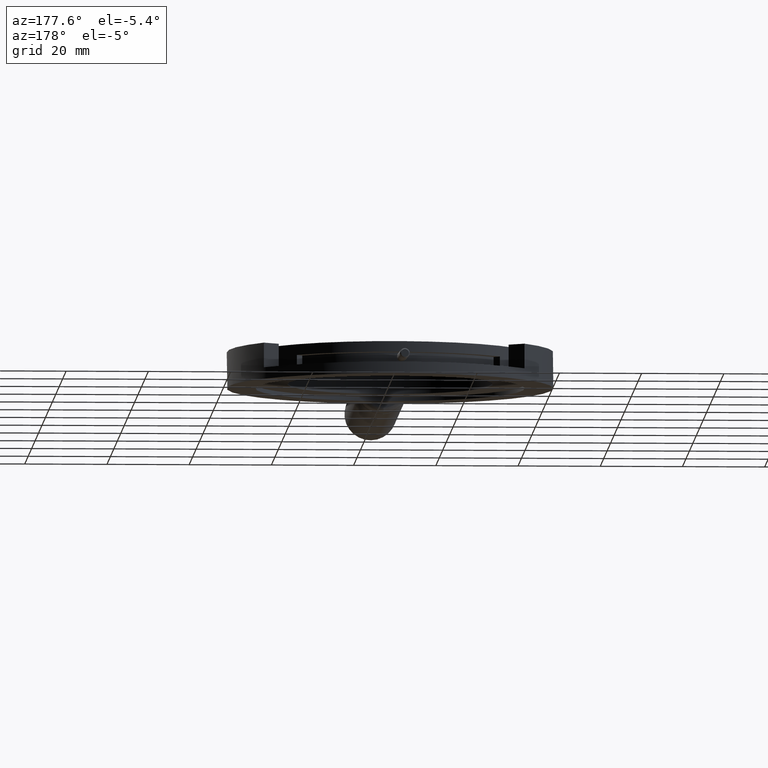
[diagram: clean part render]
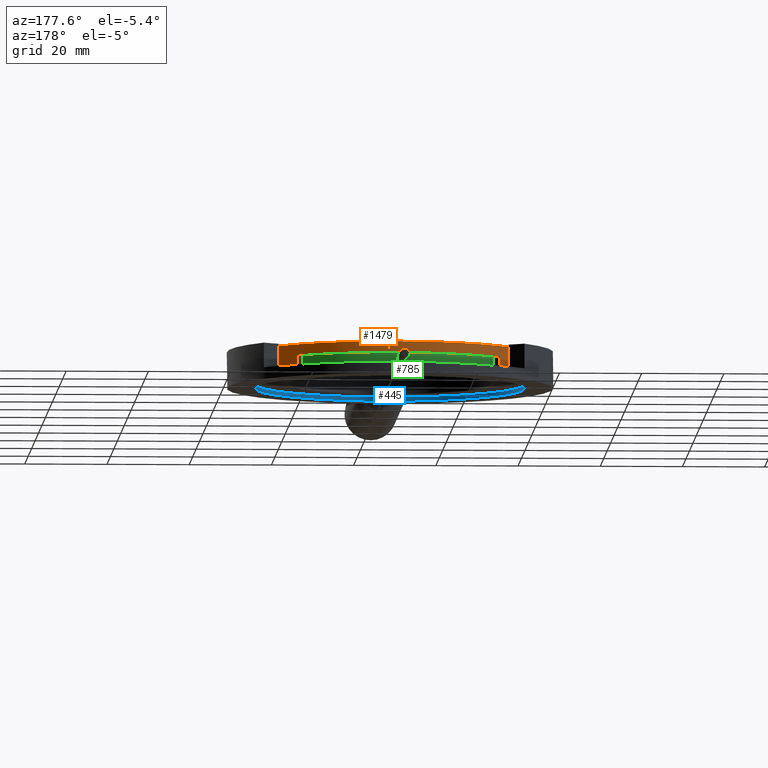
[diagram: same view with three faces highlighted in distinct colors, each labeled with its STEP entity id]
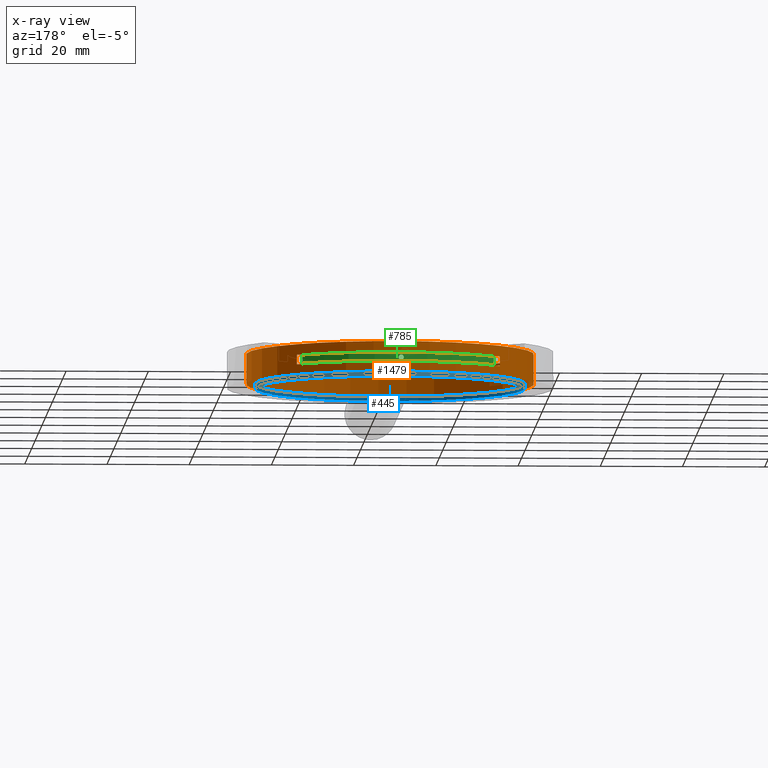
[diagram: x-ray of the same camera — body ghosted, the three highlighted faces saturated]
A machine part, auxiliary view with three faces highlighted in distinct colors.
The next image is the same camera in x-ray (body ghosted, the three faces saturated) — at least one of them is partly hidden behind the body in this view.
Their STEP definitions:

[orange] entity #1479 — the highlighted cylindrical surface (bore or boss wall) has radius 35 mm, axis along (0, -0, -1).
#62 = CARTESIAN_POINT ( 'NONE',  ( 21.14775250421162767, 15.61044449356872121, 78.35300000000000864 ) ) ;
#76 = AXIS2_PLACEMENT_3D ( 'NONE', #1858, #981, #123 ) ;
#123 = DIRECTION ( 'NONE',  ( -0.9991883662406416677, -0.04028161825643754301, 0.000000000000000000 ) ) ;
#133 = DIRECTION ( 'NONE',  ( -0.000000000000000000, 0.000000000000000000, 1.000000000000000000 ) ) ;
#168 = CIRCLE ( 'NONE', #475, 35.00000000000001421 ) ;
#224 = VECTOR ( 'NONE', #366, 1000.000000000000000 ) ;
#261 = CARTESIAN_POINT ( 'NONE',  ( -2.583978736669392262, -10.11512512715285261, 83.25300000000001432 ) ) ;
#289 = AXIS2_PLACEMENT_3D ( 'NONE', #582, #1162, #300 ) ;
#300 = DIRECTION ( 'NONE',  ( -0.9991883662406416677, -0.04028161825643754301, 0.000000000000000000 ) ) ;
#316 = CIRCLE ( 'NONE', #1313, 35.00000000000001421 ) ;
#341 = EDGE_LOOP ( 'NONE', ( #1356 ) ) ;
#348 = DIRECTION ( 'NONE',  ( -0.000000000000000000, 0.000000000000000000, 1.000000000000000000 ) ) ;
#366 = DIRECTION ( 'NONE',  ( 0.000000000000000000, -0.000000000000000000, -1.000000000000000000 ) ) ;
#404 = CYLINDRICAL_SURFACE ( 'NONE', #677, 35.00000000000001421 ) ;
#426 = FACE_BOUND ( 'NONE', #1656, .T. ) ;
#475 = AXIS2_PLACEMENT_3D ( 'NONE', #664, #348, #656 ) ;
#497 = EDGE_LOOP ( 'NONE', ( #555 ) ) ;
#555 = ORIENTED_EDGE ( 'NONE', *, *, #761, .F. ) ;
#560 = VECTOR ( 'NONE', #133, 1000.000000000000000 ) ;
#582 = CARTESIAN_POINT ( 'NONE',  ( -2.583978736669392262, -10.11512512715285261, 75.99300000000000921 ) ) ;
#617 = DIRECTION ( 'NONE',  ( -0.000000000000000000, 0.000000000000000000, 1.000000000000000000 ) ) ;
#619 = CIRCLE ( 'NONE', #289, 35.00000000000001421 ) ;
#656 = DIRECTION ( 'NONE',  ( -0.9991883662406416677, -0.04028161825643575972, 0.000000000000000000 ) ) ;
#664 = CARTESIAN_POINT ( 'NONE',  ( -2.583978736669392262, -10.11512512715285261, 80.65300000000000580 ) ) ;
#676 = ORIENTED_EDGE ( 'NONE', *, *, #1218, .T. ) ;
#677 = AXIS2_PLACEMENT_3D ( 'NONE', #261, #1855, #837 ) ;
#681 = CARTESIAN_POINT ( 'NONE',  ( -28.30954835739105135, 13.61660611372806429, 78.35300000000000864 ) ) ;
#721 = ORIENTED_EDGE ( 'NONE', *, *, #1719, .T. ) ;
#761 = EDGE_CURVE ( 'NONE', #783, #783, #316, .T. ) ;
#783 = VERTEX_POINT ( 'NONE', #1352 ) ;
#837 = DIRECTION ( 'NONE',  ( -0.9991883662406416677, -0.04028161825643754301, 0.000000000000000000 ) ) ;
#874 = EDGE_CURVE ( 'NONE', #1217, #978, #1507, .T. ) ;
#954 = CARTESIAN_POINT ( 'NONE',  ( -37.55557155509186629, -11.52498176612816749, 75.99300000000000921 ) ) ;
#978 = VERTEX_POINT ( 'NONE', #681 ) ;
#981 = DIRECTION ( 'NONE',  ( 0.000000000000000000, -0.000000000000000000, -1.000000000000000000 ) ) ;
#989 = FACE_OUTER_BOUND ( 'NONE', #341, .T. ) ;
#1029 = ORIENTED_EDGE ( 'NONE', *, *, #1810, .T. ) ;
#1106 = CARTESIAN_POINT ( 'NONE',  ( 21.14775250421162767, 15.61044449356872121, 80.65300000000000580 ) ) ;
#1162 = DIRECTION ( 'NONE',  ( -0.000000000000000000, 0.000000000000000000, 1.000000000000000000 ) ) ;
#1187 = CARTESIAN_POINT ( 'NONE',  ( -2.583978736669392262, -10.11512512715285261, 83.25300000000001432 ) ) ;
#1217 = VERTEX_POINT ( 'NONE', #1849 ) ;
#1218 = EDGE_CURVE ( 'NONE', #978, #1717, #1372, .T. ) ;
#1313 = AXIS2_PLACEMENT_3D ( 'NONE', #1187, #617, #1347 ) ;
#1347 = DIRECTION ( 'NONE',  ( -0.9991883662406416677, -0.04028161825643754301, 0.000000000000000000 ) ) ;
#1352 = CARTESIAN_POINT ( 'NONE',  ( -37.55557155509186629, -11.52498176612816749, 83.25300000000001432 ) ) ;
#1356 = ORIENTED_EDGE ( 'NONE', *, *, #1637, .T. ) ;
#1359 = VERTEX_POINT ( 'NONE', #1106 ) ;
#1372 = CIRCLE ( 'NONE', #76, 35.00000000000001421 ) ;
#1448 = CARTESIAN_POINT ( 'NONE',  ( 21.14775250421162411, 15.61044449356872121, 83.25300000000001432 ) ) ;
#1479 = ADVANCED_FACE ( 'NONE', ( #989, #1704, #426 ), #404, .T. ) ;
#1507 = LINE ( 'NONE', #1664, #224 ) ;
#1536 = VERTEX_POINT ( 'NONE', #954 ) ;
#1637 = EDGE_CURVE ( 'NONE', #1536, #1536, #619, .T. ) ;
#1656 = EDGE_LOOP ( 'NONE', ( #676, #1029, #721, #1801 ) ) ;
#1664 = CARTESIAN_POINT ( 'NONE',  ( -28.30954835739105135, 13.61660611372806784, 83.25300000000001432 ) ) ;
#1704 = FACE_OUTER_BOUND ( 'NONE', #497, .T. ) ;
#1717 = VERTEX_POINT ( 'NONE', #62 ) ;
#1719 = EDGE_CURVE ( 'NONE', #1359, #1217, #168, .T. ) ;
#1738 = LINE ( 'NONE', #1448, #560 ) ;
#1801 = ORIENTED_EDGE ( 'NONE', *, *, #874, .T. ) ;
#1810 = EDGE_CURVE ( 'NONE', #1717, #1359, #1738, .T. ) ;
#1849 = CARTESIAN_POINT ( 'NONE',  ( -28.30954835739105491, 13.61660611372806429, 80.65300000000000580 ) ) ;
#1855 = DIRECTION ( 'NONE',  ( 0.000000000000000000, -0.000000000000000000, -1.000000000000000000 ) ) ;
#1858 = CARTESIAN_POINT ( 'NONE',  ( -2.583978736669392262, -10.11512512715285261, 78.35300000000000864 ) ) ;

[blue] entity #445 — the highlighted cylindrical surface (bore or boss wall) has radius 32.751 mm, axis along (-0, -0, 1).
#8 = CARTESIAN_POINT ( 'NONE',  ( -2.583978736669392706, -10.11512512715285972, 75.99300000000000921 ) ) ;
#184 = DIRECTION ( 'NONE',  ( 0.000000000000000000, 0.000000000000000000, -1.000000000000000000 ) ) ;
#214 = DIRECTION ( 'NONE',  ( 1.000000000000000000, 0.000000000000000000, 0.000000000000000000 ) ) ;
#241 = CARTESIAN_POINT ( 'NONE',  ( -2.583978736669392706, -10.11512512715285972, 75.10399999999999920 ) ) ;
#272 = EDGE_LOOP ( 'NONE', ( #962 ) ) ;
#307 = DIRECTION ( 'NONE',  ( 0.000000000000000000, 0.000000000000000000, -1.000000000000000000 ) ) ;
#355 = CARTESIAN_POINT ( 'NONE',  ( 30.16702126333060363, -10.11512512715285972, 74.99399999999999977 ) ) ;
#388 = CYLINDRICAL_SURFACE ( 'NONE', #1369, 32.75099999999999767 ) ;
#445 = ADVANCED_FACE ( 'NONE', ( #1366, #1688 ), #388, .F. ) ;
#541 = EDGE_LOOP ( 'NONE', ( #1090 ) ) ;
#646 = AXIS2_PLACEMENT_3D ( 'NONE', #1477, #307, #890 ) ;
#747 = EDGE_CURVE ( 'NONE', #1049, #1049, #1068, .T. ) ;
#890 = DIRECTION ( 'NONE',  ( 1.000000000000000000, 0.000000000000000000, 0.000000000000000000 ) ) ;
#962 = ORIENTED_EDGE ( 'NONE', *, *, #1612, .F. ) ;
#1049 = VERTEX_POINT ( 'NONE', #355 ) ;
#1068 = CIRCLE ( 'NONE', #646, 32.75099999999999767 ) ;
#1090 = ORIENTED_EDGE ( 'NONE', *, *, #747, .T. ) ;
#1288 = CIRCLE ( 'NONE', #1464, 32.75099999999999767 ) ;
#1321 = DIRECTION ( 'NONE',  ( 1.000000000000000000, 0.000000000000000000, 0.000000000000000000 ) ) ;
#1366 = FACE_OUTER_BOUND ( 'NONE', #541, .T. ) ;
#1369 = AXIS2_PLACEMENT_3D ( 'NONE', #241, #1836, #214 ) ;
#1383 = CARTESIAN_POINT ( 'NONE',  ( 30.16702126333060363, -10.11512512715285972, 75.99300000000000921 ) ) ;
#1464 = AXIS2_PLACEMENT_3D ( 'NONE', #8, #184, #1321 ) ;
#1477 = CARTESIAN_POINT ( 'NONE',  ( -2.583978736669392706, -10.11512512715285972, 74.99399999999999977 ) ) ;
#1612 = EDGE_CURVE ( 'NONE', #1829, #1829, #1288, .T. ) ;
#1688 = FACE_OUTER_BOUND ( 'NONE', #272, .T. ) ;
#1829 = VERTEX_POINT ( 'NONE', #1383 ) ;
#1836 = DIRECTION ( 'NONE',  ( -0.000000000000000000, -0.000000000000000000, 1.000000000000000000 ) ) ;

[green] entity #785 — the highlighted cylindrical surface (partial cylindrical patch) has radius 33 mm, axis along (0, -0, -1).
#75 = CARTESIAN_POINT ( 'NONE',  ( -4.078288887112884176, 22.85143841771331452, 78.87800000000004275 ) ) ;
#191 = DIRECTION ( 'NONE',  ( -0.9991883662406416677, -0.04028161825643753607, 0.000000000000000000 ) ) ;
#213 = CARTESIAN_POINT ( 'NONE',  ( 19.79165357616127707, 14.14041194381318967, 78.35300000000000864 ) ) ;
#225 = CARTESIAN_POINT ( 'NONE',  ( -3.749789158471590778, 22.86436265374769405, 78.89425471894175246 ) ) ;
#235 = CARTESIAN_POINT ( 'NONE',  ( -3.830763765141818045, 22.86141722932580933, 78.87799999999992906 ) ) ;
#249 = DIRECTION ( 'NONE',  ( -0.9991883662406416677, -0.04028161825643753607, 0.000000000000000000 ) ) ;
#302 = EDGE_CURVE ( 'NONE', #782, #1382, #1191, .T. ) ;
#306 = B_SPLINE_CURVE_WITH_KNOTS ( 'NONE', 3,
 ( #523, #235, #225, #1659, #658, #1689, #1668, #1064, #1242, #1648, #1083, #370, #1677, #350, #361, #1809, #389, #790, #1818, #1367, #75, #951 ),
 .UNSPECIFIED., .T., .F.,
 ( 4, 2, 2, 2, 2, 2, 2, 2, 2, 2, 4 ),
 ( 0.000000000000000000, 0.0002442096510351836683, 0.0004884193020703673366, 0.0009768386041407053997, 0.001465257906211043463, 0.001953677208281381309, 0.002197886859316551533, 0.002442096510351721757, 0.002930515812422063941, 0.003418935114492406124, 0.003907354416562747873 ),
 .UNSPECIFIED. ) ;
#350 = CARTESIAN_POINT ( 'NONE',  ( -4.227928596164438169, 22.84398828761718292, 80.04901388985055632 ) ) ;
#361 = CARTESIAN_POINT ( 'NONE',  ( -4.297167708880716752, 22.84042536310908744, 80.00258991700957267 ) ) ;
#369 = CARTESIAN_POINT ( 'NONE',  ( -2.583978736669392262, -10.11512512715285261, 80.65300000000000580 ) ) ;
#370 = CARTESIAN_POINT ( 'NONE',  ( -3.995780504498681385, 22.85476468859847543, 80.12799999999998590 ) ) ;
#383 = AXIS2_PLACEMENT_3D ( 'NONE', #800, #1816, #1231 ) ;
#389 = CARTESIAN_POINT ( 'NONE',  ( -4.537416123705166449, 22.82700720193464861, 79.66644981456171593 ) ) ;
#454 = CARTESIAN_POINT ( 'NONE',  ( -26.83951580763551092, 12.26050718567772968, 80.65300000000000580 ) ) ;
#466 = EDGE_CURVE ( 'NONE', #782, #1736, #1696, .T. ) ;
#523 = CARTESIAN_POINT ( 'NONE',  ( -3.913272139132176974, 22.85809095878830988, 78.87799999999997169 ) ) ;
#658 = CARTESIAN_POINT ( 'NONE',  ( -3.529200398726831001, 22.87138545795690803, 79.00341004525155597 ) ) ;
#693 = ORIENTED_EDGE ( 'NONE', *, *, #1422, .T. ) ;
#757 = CARTESIAN_POINT ( 'NONE',  ( 19.79165357616127707, 14.14041194381318967, 80.65300000000000580 ) ) ;
#762 = EDGE_LOOP ( 'NONE', ( #1756, #1517, #1568, #1202 ) ) ;
#782 = VERTEX_POINT ( 'NONE', #757 ) ;
#785 = ADVANCED_FACE ( 'NONE', ( #1334, #1779 ), #1635, .T. ) ;
#790 = CARTESIAN_POINT ( 'NONE',  ( -4.537636465317791412, 22.82699413514528075, 79.34039624686305103 ) ) ;
#800 = CARTESIAN_POINT ( 'NONE',  ( -2.583978736669392262, -10.11512512715285261, 78.35300000000000864 ) ) ;
#821 = EDGE_CURVE ( 'NONE', #867, #1382, #1752, .T. ) ;
#824 = AXIS2_PLACEMENT_3D ( 'NONE', #369, #1532, #249 ) ;
#867 = VERTEX_POINT ( 'NONE', #925 ) ;
#906 = CARTESIAN_POINT ( 'NONE',  ( -2.583978736669392262, -10.11512512715285261, 80.65300000000000580 ) ) ;
#925 = CARTESIAN_POINT ( 'NONE',  ( -26.83951580763551092, 12.26050718567772968, 78.35300000000000864 ) ) ;
#951 = CARTESIAN_POINT ( 'NONE',  ( -3.913272139132176974, 22.85809095878830988, 78.87799999999997169 ) ) ;
#1064 = CARTESIAN_POINT ( 'NONE',  ( -3.288430783592476647, 22.87735503614748112, 79.66560377017603400 ) ) ;
#1083 = CARTESIAN_POINT ( 'NONE',  ( -3.748255408398138755, 22.86474349916801785, 80.12800000000001432 ) ) ;
#1096 = CARTESIAN_POINT ( 'NONE',  ( -3.913272139132176086, 22.85809095878830988, 78.87800000000000011 ) ) ;
#1191 = CIRCLE ( 'NONE', #824, 33.00000000000000000 ) ;
#1202 = ORIENTED_EDGE ( 'NONE', *, *, #821, .T. ) ;
#1221 = CARTESIAN_POINT ( 'NONE',  ( 19.79165357616127707, 14.14041194381318967, 80.65300000000000580 ) ) ;
#1227 = AXIS2_PLACEMENT_3D ( 'NONE', #906, #1451, #191 ) ;
#1231 = DIRECTION ( 'NONE',  ( -0.9991883662406416677, -0.04028161825643843119, 0.000000000000000000 ) ) ;
#1242 = CARTESIAN_POINT ( 'NONE',  ( -3.354705911185270395, 22.87607932604707273, 79.82787519070430449 ) ) ;
#1262 = VERTEX_POINT ( 'NONE', #1096 ) ;
#1316 = CIRCLE ( 'NONE', #383, 33.00000000000000000 ) ;
#1334 = FACE_OUTER_BOUND ( 'NONE', #762, .T. ) ;
#1358 = CARTESIAN_POINT ( 'NONE',  ( -26.83951580763551448, 12.26050718567772968, 80.65300000000000580 ) ) ;
#1367 = CARTESIAN_POINT ( 'NONE',  ( -4.238643360643449931, 22.84357139784766488, 78.94463817885134915 ) ) ;
#1382 = VERTEX_POINT ( 'NONE', #1358 ) ;
#1422 = EDGE_CURVE ( 'NONE', #1262, #1262, #306, .T. ) ;
#1451 = DIRECTION ( 'NONE',  ( 0.000000000000000000, -0.000000000000000000, -1.000000000000000000 ) ) ;
#1517 = ORIENTED_EDGE ( 'NONE', *, *, #466, .T. ) ;
#1525 = VECTOR ( 'NONE', #1797, 1000.000000000000000 ) ;
#1532 = DIRECTION ( 'NONE',  ( -0.000000000000000000, 0.000000000000000000, 1.000000000000000000 ) ) ;
#1568 = ORIENTED_EDGE ( 'NONE', *, *, #1661, .T. ) ;
#1608 = DIRECTION ( 'NONE',  ( 0.000000000000000000, 0.000000000000000000, 1.000000000000000000 ) ) ;
#1635 = CYLINDRICAL_SURFACE ( 'NONE', #1227, 33.00000000000000000 ) ;
#1648 = CARTESIAN_POINT ( 'NONE',  ( -3.587788084555743495, 22.86981019859050690, 80.06136186189320370 ) ) ;
#1659 = CARTESIAN_POINT ( 'NONE',  ( -3.598501634391569226, 22.86936321994976495, 78.95698607503145183 ) ) ;
#1661 = EDGE_CURVE ( 'NONE', #1736, #867, #1316, .T. ) ;
#1668 = CARTESIAN_POINT ( 'NONE',  ( -3.288651462020134364, 22.87735032350598630, 79.33955016839931318 ) ) ;
#1677 = CARTESIAN_POINT ( 'NONE',  ( -4.076729523851387427, 22.85118226866530833, 80.11174525716799621 ) ) ;
#1689 = CARTESIAN_POINT ( 'NONE',  ( -3.356285673283347482, 22.87603793636435867, 79.17637788809170729 ) ) ;
#1696 = LINE ( 'NONE', #1221, #1525 ) ;
#1711 = VECTOR ( 'NONE', #1608, 1000.000000000000000 ) ;
#1736 = VERTEX_POINT ( 'NONE', #213 ) ;
#1752 = LINE ( 'NONE', #454, #1711 ) ;
#1756 = ORIENTED_EDGE ( 'NONE', *, *, #302, .F. ) ;
#1779 = FACE_BOUND ( 'NONE', #1791, .T. ) ;
#1791 = EDGE_LOOP ( 'NONE', ( #693 ) ) ;
#1797 = DIRECTION ( 'NONE',  ( -0.000000000000000000, -0.000000000000000000, -1.000000000000000000 ) ) ;
#1809 = CARTESIAN_POINT ( 'NONE',  ( -4.469895769915907202, 22.83114348139451266, 79.82962207891785056 ) ) ;
#1816 = DIRECTION ( 'NONE',  ( -0.000000000000000000, 0.000000000000000000, 1.000000000000000000 ) ) ;
#1818 = CARTESIAN_POINT ( 'NONE',  ( -4.471473736122506537, 22.83105756935924191, 79.17812484176106125 ) ) ;